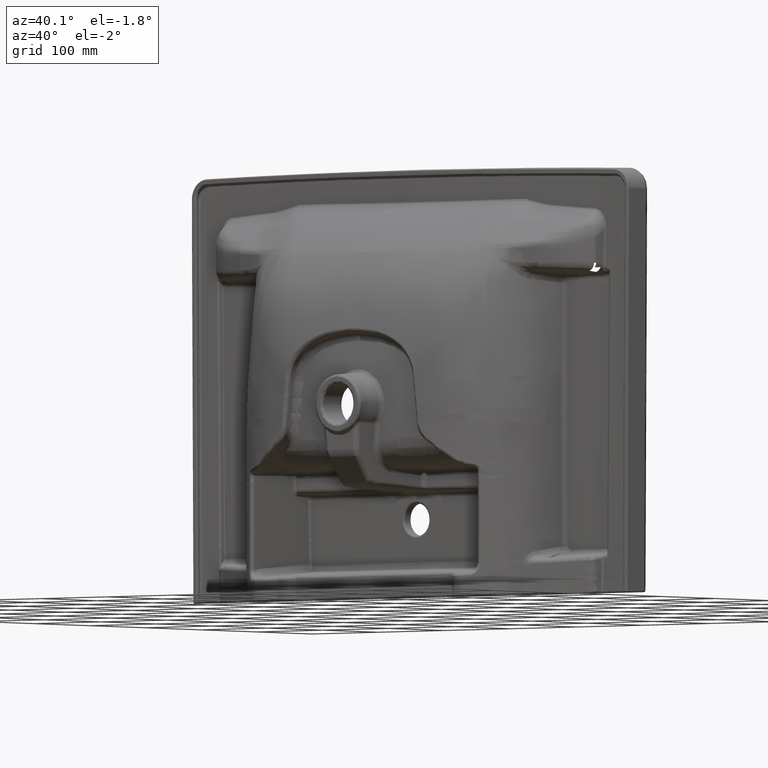
[diagram: clean part render]
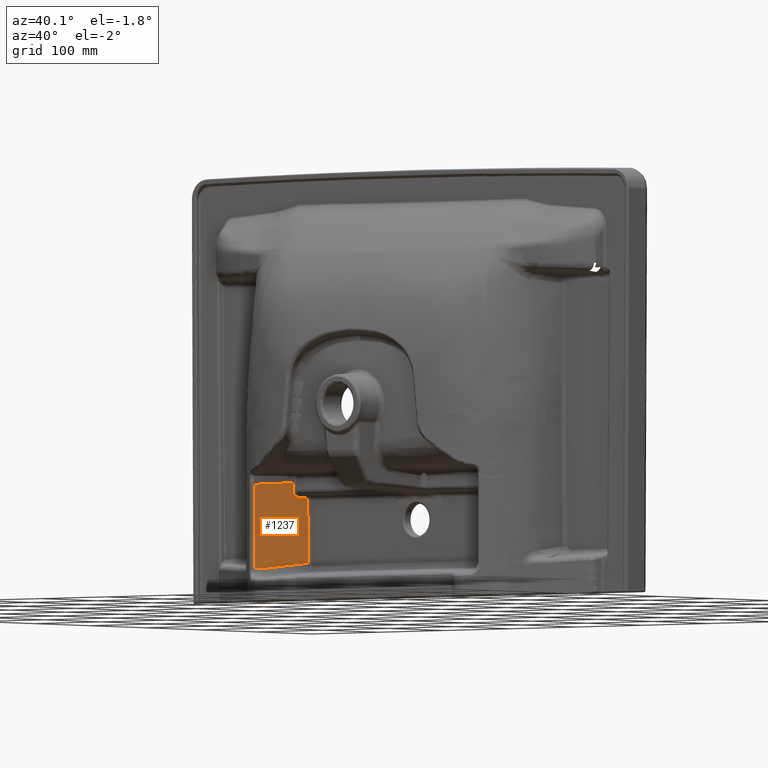
[diagram: same view with one face highlighted and labeled with its STEP entity id]
A machine part, auxiliary view. The second image highlights one B-rep face of the part: STEP entity #1237.
In plain terms, the highlighted face is a freeform B-spline surface patch.
Its self-contained STEP definition (entity closure, byte-faithful):
#1237=ADVANCED_FACE('',(#2843),#22679,.T.);
#2843=FACE_OUTER_BOUND('',#4449,.T.);
#4449=EDGE_LOOP('',(#10524,#10525,#10526,#10527,#10528,#10529,#10530,#10531,
#10532,#10533,#10534,#10535));
#10524=ORIENTED_EDGE('',*,*,#14966,.F.);
#10525=ORIENTED_EDGE('',*,*,#12361,.F.);
#10526=ORIENTED_EDGE('',*,*,#12363,.F.);
#10527=ORIENTED_EDGE('',*,*,#12364,.F.);
#10528=ORIENTED_EDGE('',*,*,#12368,.F.);
#10529=ORIENTED_EDGE('',*,*,#12371,.F.);
#10530=ORIENTED_EDGE('',*,*,#12373,.F.);
#10531=ORIENTED_EDGE('',*,*,#12378,.F.);
#10532=ORIENTED_EDGE('',*,*,#12383,.F.);
#10533=ORIENTED_EDGE('',*,*,#16027,.T.);
#10534=ORIENTED_EDGE('',*,*,#15059,.F.);
#10535=ORIENTED_EDGE('',*,*,#14964,.F.);
#12361=EDGE_CURVE('',#19885,#19883,#19335,.T.);
#12363=EDGE_CURVE('',#19887,#19885,#19337,.T.);
#12364=EDGE_CURVE('',#19888,#19887,#19338,.T.);
#12368=EDGE_CURVE('',#19890,#19888,#19342,.T.);
#12371=EDGE_CURVE('',#19893,#19890,#19345,.T.);
#12373=EDGE_CURVE('',#19894,#19893,#19347,.T.);
#12378=EDGE_CURVE('',#19897,#19894,#19352,.T.);
#12383=EDGE_CURVE('',#19901,#19897,#19357,.T.);
#14964=EDGE_CURVE('',#21426,#21424,#18338,.T.);
#14966=EDGE_CURVE('',#19883,#21426,#19673,.T.);
#15059=EDGE_CURVE('',#21424,#21526,#18415,.T.);
#16027=EDGE_CURVE('',#19901,#21526,#19243,.T.);
#18338=B_SPLINE_CURVE_WITH_KNOTS('',3,(#118262,#118263,#118264,#118265),
 .UNSPECIFIED.,.F.,.F.,(4,4),(0.,1.),.UNSPECIFIED.);
#18415=B_SPLINE_CURVE_WITH_KNOTS('',3,(#118719,#118720,#118721,#118722),
 .UNSPECIFIED.,.F.,.F.,(4,4),(-0.999993247671552,0.),.UNSPECIFIED.);
#19243=B_SPLINE_CURVE_WITH_KNOTS('',3,(#124299,#124300,#124301,#124302,
#124303,#124304,#124305),.UNSPECIFIED.,.F.,.F.,(4,3,4),(0.,1.,2.),
 .UNSPECIFIED.);
#19335=(
BOUNDED_CURVE()
B_SPLINE_CURVE(3,(#105374,#105375,#105376,#105377),.UNSPECIFIED.,.F.,.F.)
B_SPLINE_CURVE_WITH_KNOTS((4,4),(-1.,0.),.UNSPECIFIED.)
CURVE()
GEOMETRIC_REPRESENTATION_ITEM()
RATIONAL_B_SPLINE_CURVE((1.,1.,1.,1.))
REPRESENTATION_ITEM('')
);
#19337=(
BOUNDED_CURVE()
B_SPLINE_CURVE(3,(#105381,#105382,#105383,#105384),.UNSPECIFIED.,.F.,.F.)
B_SPLINE_CURVE_WITH_KNOTS((4,4),(-1.,0.),.UNSPECIFIED.)
CURVE()
GEOMETRIC_REPRESENTATION_ITEM()
RATIONAL_B_SPLINE_CURVE((1.,1.,1.,1.))
REPRESENTATION_ITEM('')
);
#19338=(
BOUNDED_CURVE()
B_SPLINE_CURVE(3,(#105385,#105386,#105387,#105388),.UNSPECIFIED.,.F.,.F.)
B_SPLINE_CURVE_WITH_KNOTS((4,4),(0.,33.4023752470565),.UNSPECIFIED.)
CURVE()
GEOMETRIC_REPRESENTATION_ITEM()
RATIONAL_B_SPLINE_CURVE((1.,1.,1.,1.))
REPRESENTATION_ITEM('')
);
#19342=(
BOUNDED_CURVE()
B_SPLINE_CURVE(3,(#105399,#105400,#105401,#105402),.UNSPECIFIED.,.F.,.F.)
B_SPLINE_CURVE_WITH_KNOTS((4,4),(0.,1.),.UNSPECIFIED.)
CURVE()
GEOMETRIC_REPRESENTATION_ITEM()
RATIONAL_B_SPLINE_CURVE((1.,1.,1.,1.))
REPRESENTATION_ITEM('')
);
#19345=(
BOUNDED_CURVE()
B_SPLINE_CURVE(3,(#105410,#105411,#105412,#105413,#105414,#105415,#105416),
 .UNSPECIFIED.,.F.,.F.)
B_SPLINE_CURVE_WITH_KNOTS((4,3,4),(-1.,-0.500000059604647,0.),
 .UNSPECIFIED.)
CURVE()
GEOMETRIC_REPRESENTATION_ITEM()
RATIONAL_B_SPLINE_CURVE((1.,0.999999999999978,0.999999999999956,0.999999999999934,
0.999999999999956,0.999999999999979,1.))
REPRESENTATION_ITEM('')
);
#19347=(
BOUNDED_CURVE()
B_SPLINE_CURVE(3,(#105424,#105425,#105426,#105427),.UNSPECIFIED.,.F.,.F.)
B_SPLINE_CURVE_WITH_KNOTS((4,4),(0.,1.),.UNSPECIFIED.)
CURVE()
GEOMETRIC_REPRESENTATION_ITEM()
RATIONAL_B_SPLINE_CURVE((1.,1.,1.,1.))
REPRESENTATION_ITEM('')
);
#19352=(
BOUNDED_CURVE()
B_SPLINE_CURVE(3,(#105441,#105442,#105443,#105444,#105445,#105446),
 .UNSPECIFIED.,.F.,.F.)
B_SPLINE_CURVE_WITH_KNOTS((4,2,4),(-1.,-0.500000059604651,0.),
 .UNSPECIFIED.)
CURVE()
GEOMETRIC_REPRESENTATION_ITEM()
RATIONAL_B_SPLINE_CURVE((1.,1.,1.,1.,1.,1.))
REPRESENTATION_ITEM('')
);
#19357=(
BOUNDED_CURVE()
B_SPLINE_CURVE(3,(#105465,#105466,#105467,#105468),.UNSPECIFIED.,.F.,.F.)
B_SPLINE_CURVE_WITH_KNOTS((4,4),(-0.999999999999936,0.),.UNSPECIFIED.)
CURVE()
GEOMETRIC_REPRESENTATION_ITEM()
RATIONAL_B_SPLINE_CURVE((1.,1.,1.,1.))
REPRESENTATION_ITEM('')
);
#19673=(
BOUNDED_CURVE()
B_SPLINE_CURVE(3,(#118270,#118271,#118272,#118273),.UNSPECIFIED.,.F.,.F.)
B_SPLINE_CURVE_WITH_KNOTS((4,4),(-1.,0.),.UNSPECIFIED.)
CURVE()
GEOMETRIC_REPRESENTATION_ITEM()
RATIONAL_B_SPLINE_CURVE((1.,1.,1.,1.))
REPRESENTATION_ITEM('')
);
#19883=VERTEX_POINT('',#103000);
#19885=VERTEX_POINT('',#103002);
#19887=VERTEX_POINT('',#103004);
#19888=VERTEX_POINT('',#103005);
#19890=VERTEX_POINT('',#103007);
#19893=VERTEX_POINT('',#103010);
#19894=VERTEX_POINT('',#103011);
#19897=VERTEX_POINT('',#103014);
#19901=VERTEX_POINT('',#103018);
#21424=VERTEX_POINT('',#104541);
#21426=VERTEX_POINT('',#104543);
#21526=VERTEX_POINT('',#104643);
#22679=B_SPLINE_SURFACE_WITH_KNOTS('',1,3,((#84770,#84771,#84772,#84773,
#84774,#84775,#84776,#84777),(#84778,#84779,#84780,#84781,#84782,#84783,
#84784,#84785)),.UNSPECIFIED.,.F.,.F.,.F.,(2,2),(4,2,1,1,4),(0.,136.092365901217),
(0.,62.2777208433626,96.2819954730697,192.563990946139,211.30188170742),
 .UNSPECIFIED.);
#84770=CARTESIAN_POINT('',(-1344.59227113364,-26.0978819331115,-81.9511523794413));
#84771=CARTESIAN_POINT('',(-1344.54252466823,-25.7355960913691,-102.706756770007));
#84772=CARTESIAN_POINT('',(-1344.49277820283,-25.3733102496272,-123.462361160572));
#84773=CARTESIAN_POINT('',(-1344.41586965685,-24.8132126207759,-155.550738527486));
#84774=CARTESIAN_POINT('',(-1344.31233496918,-24.0552973611327,-198.971887260206));
#84775=CARTESIAN_POINT('',(-1344.1989342923,-23.1884105517644,-248.637905735678));
#84776=CARTESIAN_POINT('',(-1344.11140933742,-22.5193296348615,-286.971151577424));
#84777=CARTESIAN_POINT('',(-1344.09715064619,-22.4103296563201,-293.216021022387));
#84778=CARTESIAN_POINT('',(-1356.47301403145,-161.488268828165,-88.981290088385));
#84779=CARTESIAN_POINT('',(-1356.42326661182,-161.125973880259,-109.737073045911));
#84780=CARTESIAN_POINT('',(-1356.37351919218,-160.763678932354,-130.492856003435));
#84781=CARTESIAN_POINT('',(-1356.29660917095,-160.203567225276,-162.581509436706));
#84782=CARTESIAN_POINT('',(-1356.19307131198,-159.445621580264,-206.003245444851));
#84783=CARTESIAN_POINT('',(-1356.07966220947,-158.578653118632,-255.670860179612));
#84784=CARTESIAN_POINT('',(-1355.99213075153,-157.909509180847,-294.005338046828));
#84785=CARTESIAN_POINT('',(-1355.97787100088,-157.800498935573,-300.250408201072));
#103000=CARTESIAN_POINT('',(-1346.18228096587,-45.4154199954034,-207.144348378094));
#103002=CARTESIAN_POINT('',(-1346.2264648358,-45.7460609375214,-188.201777927365));
#103004=CARTESIAN_POINT('',(-1346.24892555871,-45.9127577706514,-178.651651838415));
#103005=CARTESIAN_POINT('',(-1346.32841801441,-46.4957023509104,-145.254571068779));
#103007=CARTESIAN_POINT('',(-1346.35449523227,-46.6856142187402,-134.374509179662));
#103010=CARTESIAN_POINT('',(-1346.58126673152,-49.242467662582,-131.726810102934));
#103011=CARTESIAN_POINT('',(-1347.73689603838,-62.3982513306572,-131.037344696167));
#103014=CARTESIAN_POINT('',(-1348.46788569405,-70.6401751331851,-122.502582845654));
#103018=CARTESIAN_POINT('',(-1348.48725156301,-70.7812104750585,-114.422666020701));
#104541=CARTESIAN_POINT('',(-1353.86161463766,-132.960820867289,-215.425445983475));
#104543=CARTESIAN_POINT('',(-1352.32917577041,-115.497519985484,-214.510236115417));
#104643=CARTESIAN_POINT('',(-1353.93843281267,-132.901883770664,-117.678271230996));
#105374=CARTESIAN_POINT('',(-1346.2264648358,-45.7460609375214,-188.201777927365));
#105375=CARTESIAN_POINT('',(-1346.21165869516,-45.6358473887844,-194.515968025589));
#105376=CARTESIAN_POINT('',(-1346.19693683124,-45.5256337677183,-200.830156685654));
#105377=CARTESIAN_POINT('',(-1346.18228096587,-45.4154199954034,-207.144348378094));
#105381=CARTESIAN_POINT('',(-1346.24892555871,-45.9127577706514,-178.651651838415));
#105382=CARTESIAN_POINT('',(-1346.24141569987,-45.857192188638,-181.835026468112));
#105383=CARTESIAN_POINT('',(-1346.23392954505,-45.8016265867195,-185.018401772305));
#105384=CARTESIAN_POINT('',(-1346.2264648358,-45.7460609375214,-188.201777927365));
#105385=CARTESIAN_POINT('',(-1346.32841801441,-46.4957023509104,-145.254571068779));
#105386=CARTESIAN_POINT('',(-1346.30173602419,-46.3013859824537,-156.386944675982));
#105387=CARTESIAN_POINT('',(-1346.27518772359,-46.1070719453779,-167.519304454921));
#105388=CARTESIAN_POINT('',(-1346.24892555871,-45.9127577706514,-178.651651838415));
#105399=CARTESIAN_POINT('',(-1346.35449523227,-46.6856142187402,-134.374509179662));
#105400=CARTESIAN_POINT('',(-1346.3458028263,-46.6223102626548,-138.001196476032));
#105401=CARTESIAN_POINT('',(-1346.33711042036,-46.5590063068787,-141.627883772408));
#105402=CARTESIAN_POINT('',(-1346.32841801441,-46.4957023509104,-145.254571068779));
#105410=CARTESIAN_POINT('',(-1346.58126673152,-49.242467662582,-131.726810102934));
#105411=CARTESIAN_POINT('',(-1346.5219730978,-48.5674638252473,-131.762185677225));
#105412=CARTESIAN_POINT('',(-1346.46433566646,-47.9139087817592,-132.060120913098));
#105413=CARTESIAN_POINT('',(-1346.42272704529,-47.4447596158484,-132.544801725102));
#105414=CARTESIAN_POINT('',(-1346.38111841419,-46.9756103380838,-133.029482652662));
#105415=CARTESIAN_POINT('',(-1346.35611774592,-46.6974304767879,-133.697558340895));
#105416=CARTESIAN_POINT('',(-1346.35449523227,-46.6856142187402,-134.374509179662));
#105424=CARTESIAN_POINT('',(-1347.73689603838,-62.3982513306572,-131.037344696167));
#105425=CARTESIAN_POINT('',(-1347.35168626943,-58.012990107979,-131.267166498679));
#105426=CARTESIAN_POINT('',(-1346.96647650047,-53.627728885273,-131.496988300665));
#105427=CARTESIAN_POINT('',(-1346.58126673152,-49.242467662582,-131.726810102934));
#105441=CARTESIAN_POINT('',(-1348.46788569405,-70.6401751331851,-122.502582845654));
#105442=CARTESIAN_POINT('',(-1348.46263809126,-70.6019583803932,-124.69199515187));
#105443=CARTESIAN_POINT('',(-1348.38235419145,-69.7086069343068,-126.833226159628));
#105444=CARTESIAN_POINT('',(-1348.11410398241,-66.684041233505,-129.961260730838));
#105445=CARTESIAN_POINT('',(-1347.92759491234,-64.5691837538691,-130.923570945425));
#105446=CARTESIAN_POINT('',(-1347.73689603838,-62.3982513306572,-131.037344696167));
#105465=CARTESIAN_POINT('',(-1348.48725156301,-70.7812104750585,-114.422666020701));
#105466=CARTESIAN_POINT('',(-1348.48079627336,-70.7341986944146,-117.115971629019));
#105467=CARTESIAN_POINT('',(-1348.4743409837,-70.6871869137714,-119.809277237336));
#105468=CARTESIAN_POINT('',(-1348.46788569405,-70.6401751331851,-122.502582845654));
#118262=CARTESIAN_POINT('',(-1352.32917577041,-115.497519985484,-214.510236115417));
#118263=CARTESIAN_POINT('',(-1352.8399887262,-121.318620279887,-214.815306062294));
#118264=CARTESIAN_POINT('',(-1353.35080168195,-127.139720573823,-215.120376018313));
#118265=CARTESIAN_POINT('',(-1353.86161463766,-132.960820867289,-215.425445983475));
#118270=CARTESIAN_POINT('',(-1346.18228096587,-45.4154199954034,-207.144348378094));
#118271=CARTESIAN_POINT('',(-1348.2312439069,-68.7761257953246,-209.599644547419));
#118272=CARTESIAN_POINT('',(-1350.28020791061,-92.1368146484477,-212.054939291958));
#118273=CARTESIAN_POINT('',(-1352.32917577041,-115.497519985484,-214.510236115417));
#118719=CARTESIAN_POINT('',(-1353.86161463766,-132.960820867289,-215.425445983475));
#118720=CARTESIAN_POINT('',(-1353.88550867249,-132.94160663004,-182.843002218715));
#118721=CARTESIAN_POINT('',(-1353.91196663591,-132.921195312094,-150.260492571378));
#118722=CARTESIAN_POINT('',(-1353.93843281267,-132.901883770664,-117.678271230996));
#124299=CARTESIAN_POINT('',(-1348.48725156301,-70.7812104750585,-114.422666020701));
#124300=CARTESIAN_POINT('',(-1350.26535765639,-91.0442208671043,-115.484605359256));
#124301=CARTESIAN_POINT('',(-1352.04346248738,-111.307216873461,-116.546543981545));
#124302=CARTESIAN_POINT('',(-1353.82156731817,-131.5702128779,-117.608482641442));
#124303=CARTESIAN_POINT('',(-1353.860522483,-132.014103175489,-117.631745504609));
#124304=CARTESIAN_POINT('',(-1353.89947764784,-132.457993473077,-117.655008367793));
#124305=CARTESIAN_POINT('',(-1353.93843281267,-132.901883770664,-117.678271230996));